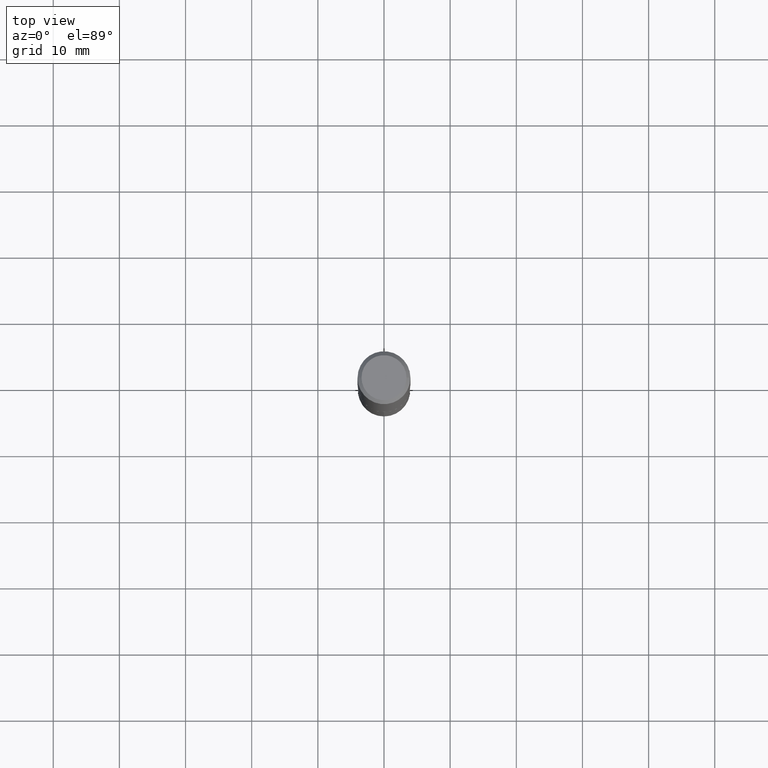
[diagram: clean part render]
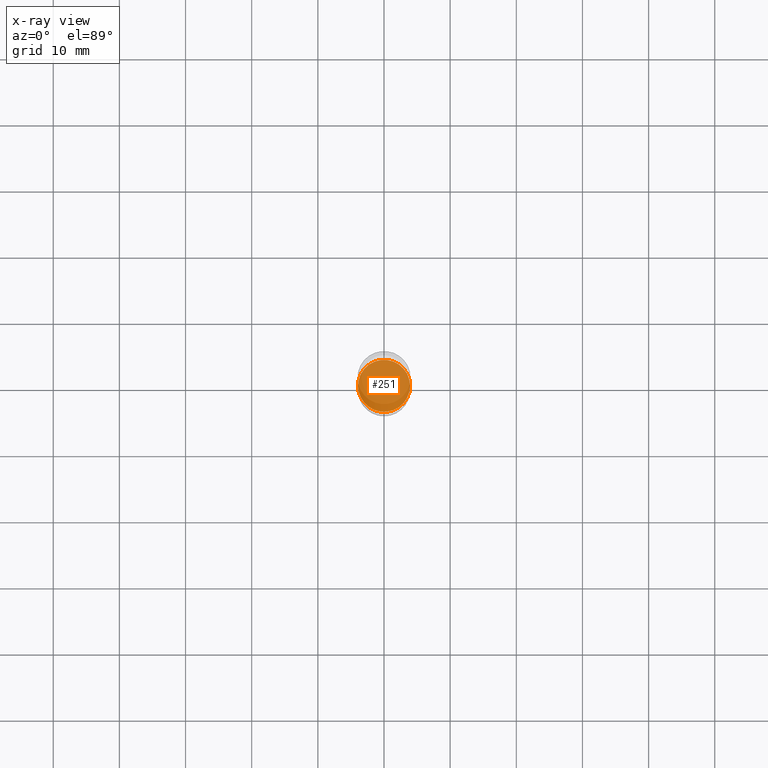
[diagram: x-ray — body ghosted, one internal face saturated and labeled with its STEP entity id]
A machine part, top view, then the same camera in x-ray: the body is ghosted and one INTERNAL B-rep face — a face not visible from any outside direction — is saturated and labeled: STEP entity #251.
In plain terms, the highlighted planar face has unit normal (-0, 0, 1).
Its self-contained STEP definition (entity closure, byte-faithful):
#13 = CARTESIAN_POINT ( 'NONE',  ( 6.932170424893008544E-29, -9.897302151218667552E-15, -2.834700000000000664 ) ) ;
#26 = VERTEX_POINT ( 'NONE', #94 ) ;
#41 = CIRCLE ( 'NONE', #58, 0.1549999999999999989 ) ;
#45 = DIRECTION ( 'NONE',  ( 1.000000000000000000, -6.982962677686265922E-15, 4.876176775795935793E-29 ) ) ;
#58 = AXIS2_PLACEMENT_3D ( 'NONE', #250, #255, #75 ) ;
#75 = DIRECTION ( 'NONE',  ( 1.000000000000000000, -6.982962677686263555E-15, 0.000000000000000000 ) ) ;
#81 = EDGE_LOOP ( 'NONE', ( #335, #84 ) ) ;
#84 = ORIENTED_EDGE ( 'NONE', *, *, #127, .F. ) ;
#94 = CARTESIAN_POINT ( 'NONE',  ( -0.1549999999999999989, -8.793311683616400085E-15, -2.834700000000000664 ) ) ;
#124 = PLANE ( 'NONE',  #425 ) ;
#127 = EDGE_CURVE ( 'NONE', #26, #424, #41, .T. ) ;
#154 = DIRECTION ( 'NONE',  ( -2.445468806185136597E-29, 3.491481338843145583E-15, 1.000000000000000000 ) ) ;
#159 = AXIS2_PLACEMENT_3D ( 'NONE', #13, #154, #298 ) ;
#184 = FACE_OUTER_BOUND ( 'NONE', #81, .T. ) ;
#206 = CIRCLE ( 'NONE', #159, 0.1549999999999999989 ) ;
#250 = CARTESIAN_POINT ( 'NONE',  ( 6.932170424893008544E-29, -9.897302151218667552E-15, -2.834700000000000664 ) ) ;
#251 = ADVANCED_FACE ( 'NONE', ( #184 ), #124, .F. ) ;
#255 = DIRECTION ( 'NONE',  ( -2.445468806185136597E-29, 3.491481338843145583E-15, 1.000000000000000000 ) ) ;
#261 = DIRECTION ( 'NONE',  ( -2.438088387897960049E-29, 3.491481338843145188E-15, 1.000000000000000000 ) ) ;
#298 = DIRECTION ( 'NONE',  ( 1.000000000000000000, -6.982962677686263555E-15, 0.000000000000000000 ) ) ;
#335 = ORIENTED_EDGE ( 'NONE', *, *, #349, .F. ) ;
#349 = EDGE_CURVE ( 'NONE', #424, #26, #206, .T. ) ;
#412 = CARTESIAN_POINT ( 'NONE',  ( 0.1549999999999999989, -1.097966136626003921E-14, -2.834700000000000664 ) ) ;
#424 = VERTEX_POINT ( 'NONE', #412 ) ;
#425 = AXIS2_PLACEMENT_3D ( 'NONE', #447, #261, #45 ) ;
#447 = CARTESIAN_POINT ( 'NONE',  ( -4.535861368650519491E-31, -1.988952087075426190E-14, -2.834700000000000220 ) ) ;